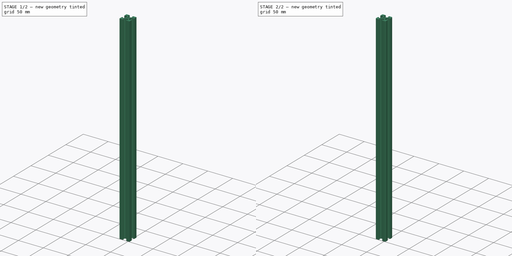
[diagram: build sequence overview — one tinted view per stage of 2, left to right]
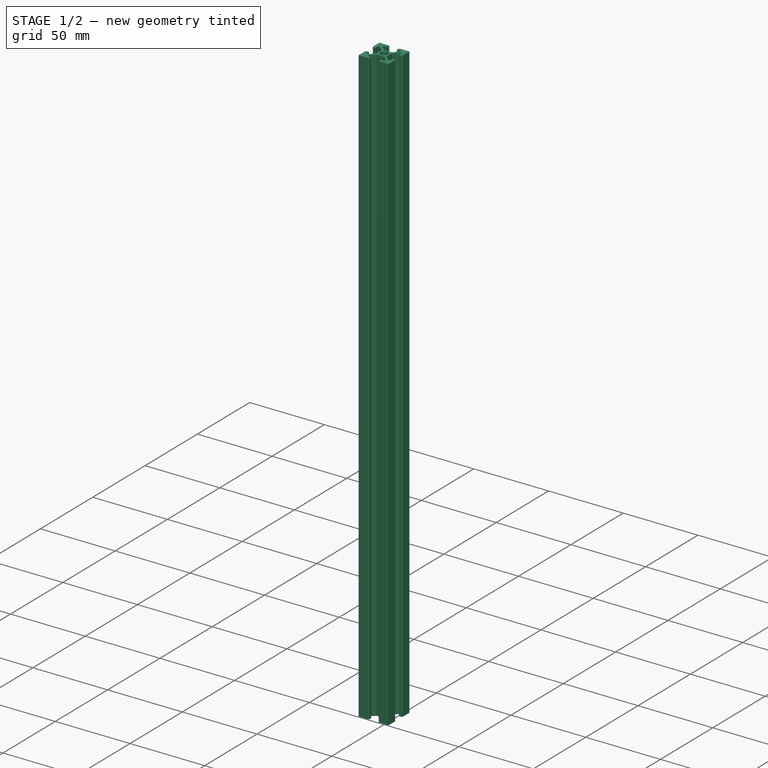
[diagram: stage 1 of 2 — iso view after this stage's code; geometry added in this stage tinted green]
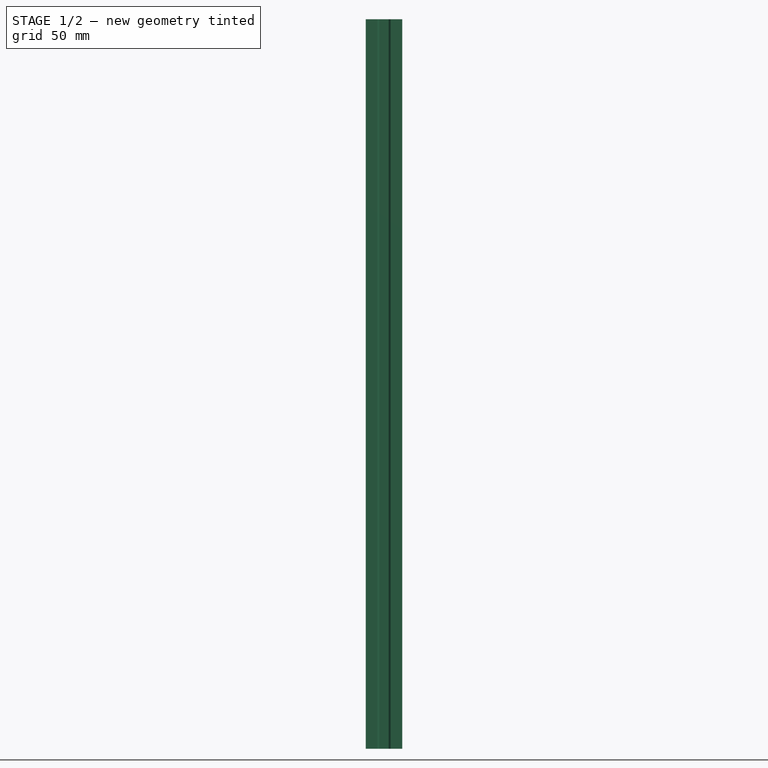
[diagram: stage 1 of 2 — front view after this stage's code; geometry added in this stage tinted green]
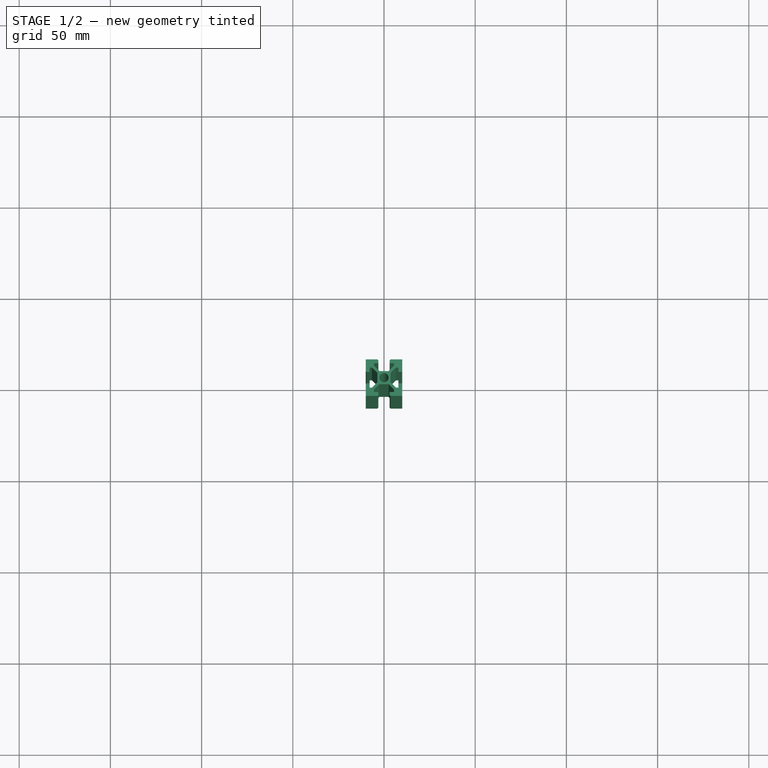
[diagram: stage 1 of 2 — top view after this stage's code; geometry added in this stage tinted green]
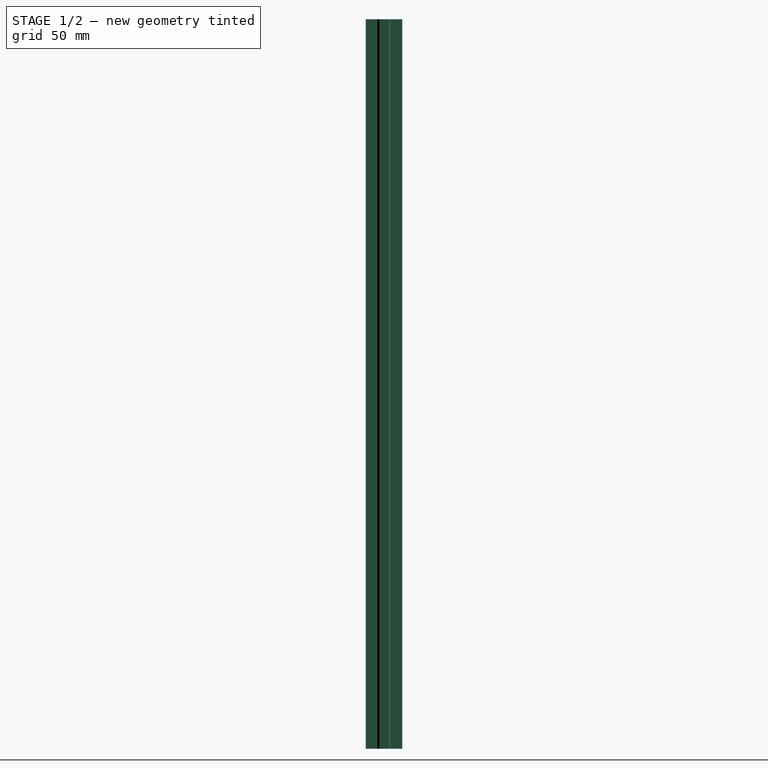
[diagram: stage 1 of 2 — right view after this stage's code; geometry added in this stage tinted green]
FCSTD DOCUMENT  (FreeCAD 1.0R39109 (Git))
Label: 5_6_2020_t_extrusion
License: All rights reserved
LicenseURL: https://en.wikipedia.org/wiki/All_rights_reserved
objects: Sketcher::SketchObject×1, App::FeaturePython×1, PartDesign::Pad×1, PartDesign::Fillet×1, PartDesign::Body×1
note: 9 computed .brp shape members not serialized (recipe doc carries the construction recipe); baked Part::Feature solids carry a one-line shape summary decoded from their .brp

FEATURE [Sketcher::SketchObject] Sketch
  ArcFitTolerance = 1e-06
  AttachmentSupport = -> [XY_Plane]
  FullyConstrained = true
  MakeInternals = false
  MapMode = 5
  sketch-geometry (69):
    g0: Circle CenterX=0 CenterY=0 CenterZ=0 NormalX=0 NormalY=0 NormalZ=1 AngleXU=0 Radius=2.5
    g1: LineSegment StartX=-3.6 StartY=2.53934 StartZ=0 EndX=-3.6 EndY=-2.53934 EndZ=0
    g2: LineSegment StartX=-2.53934 StartY=-3.6 StartZ=0 EndX=2.53934 EndY=-3.6 EndZ=0
    g3: LineSegment StartX=3.6 StartY=-2.53934 StartZ=0 EndX=3.6 EndY=2.53934 EndZ=0
    g4: LineSegment StartX=2.53934 StartY=3.6 StartZ=0 EndX=-2.53934 EndY=3.6 EndZ=0
    g5: LineSegment StartX=-2.53934 StartY=3.6 StartZ=0 EndX=-5.5 EndY=6.56066 EndZ=0
    g6: LineSegment StartX=-5.5 StartY=6.56066 StartZ=0 EndX=-5.5 EndY=7.9 EndZ=0
    g7: LineSegment StartX=-5.5 StartY=7.9 StartZ=0 EndX=-3.1 EndY=7.9 EndZ=0
    g8: LineSegment StartX=-3.1 StartY=7.9 StartZ=0 EndX=-3.1 EndY=9.5 EndZ=0
    g9: LineSegment StartX=-3.1 StartY=9.5 StartZ=0 EndX=-3.6 EndY=10 EndZ=0
    g10: LineSegment StartX=-3.6 StartY=10 StartZ=0 EndX=-10 EndY=10 EndZ=0
    g11: LineSegment [constr] StartX=-10 StartY=10 StartZ=0 EndX=-3.6 EndY=3.6 EndZ=0
    g12: LineSegment [constr] StartX=-3.6 StartY=3.6 StartZ=0 EndX=-2.53934 EndY=3.6 EndZ=0
    g13: LineSegment StartX=-3.6 StartY=2.53934 StartZ=0 EndX=-6.56066 EndY=5.5 EndZ=0
    g14: LineSegment StartX=-6.56066 StartY=5.5 StartZ=0 EndX=-7.9 EndY=5.5 EndZ=0
    g15: LineSegment StartX=-7.9 StartY=5.5 StartZ=0 EndX=-7.9 EndY=3.1 EndZ=0
    g16: LineSegment StartX=-7.9 StartY=3.1 StartZ=0 EndX=-9.5 EndY=3.1 EndZ=0
    g17: LineSegment StartX=-9.5 StartY=3.1 StartZ=0 EndX=-10 EndY=3.6 EndZ=0
    g18: LineSegment StartX=-10 StartY=3.6 StartZ=0 EndX=-10 EndY=10 EndZ=0
    g19: LineSegment StartX=-5.5 StartY=-6.56066 StartZ=0 EndX=-5.5 EndY=-7.9 EndZ=0
    g20: LineSegment StartX=-6.56066 StartY=-5.5 StartZ=0 EndX=-7.9 EndY=-5.5 EndZ=0
    g21: LineSegment StartX=-7.9 StartY=-5.5 StartZ=0 EndX=-7.9 EndY=-3.1 EndZ=0
    g22: LineSegment StartX=-7.9 StartY=-3.1 StartZ=0 EndX=-9.5 EndY=-3.1 EndZ=0
    g23: LineSegment StartX=-9.5 StartY=-3.1 StartZ=0 EndX=-10 EndY=-3.6 EndZ=0
    g24: LineSegment StartX=-10 StartY=-3.6 StartZ=0 EndX=-10 EndY=-10 EndZ=0
    g25: LineSegment StartX=-2.53934 StartY=-3.6 StartZ=0 EndX=-5.5 EndY=-6.56066 EndZ=0
    g26: LineSegment StartX=-5.5 StartY=-7.9 StartZ=0 EndX=-3.1 EndY=-7.9 EndZ=0
    g27: LineSegment StartX=-3.1 StartY=-7.9 StartZ=0 EndX=-3.1 EndY=-9.5 EndZ=0
    g28: LineSegment StartX=-3.1 StartY=-9.5 StartZ=0 EndX=-3.6 EndY=-10 EndZ=0
    g29: LineSegment StartX=-3.6 StartY=-10 StartZ=0 EndX=-10 EndY=-10 EndZ=0
    g30: LineSegment [constr] StartX=-10 StartY=-10 StartZ=0 EndX=-3.6 EndY=-3.6 EndZ=0
    g31: LineSegment StartX=-3.6 StartY=-2.53934 StartZ=0 EndX=-6.56066 EndY=-5.5 EndZ=0
    g32: LineSegment StartX=5.5 StartY=6.56066 StartZ=0 EndX=5.5 EndY=7.9 EndZ=0
    g33: LineSegment StartX=6.56066 StartY=5.5 StartZ=0 EndX=7.89999 EndY=5.5 EndZ=0
    g34: LineSegment StartX=7.89999 StartY=5.5 StartZ=0 EndX=7.9 EndY=3.1 EndZ=0
    g35: LineSegment StartX=7.9 StartY=3.1 StartZ=0 EndX=9.5 EndY=3.1 EndZ=0
    g36: LineSegment StartX=9.5 StartY=3.1 StartZ=0 EndX=10 EndY=3.6 EndZ=0
    g37: LineSegment StartX=10 StartY=3.6 StartZ=0 EndX=10 EndY=10 EndZ=0
    g38: LineSegment StartX=2.53934 StartY=3.6 StartZ=0 EndX=5.5 EndY=6.56066 EndZ=0
    g39: LineSegment StartX=5.5 StartY=7.9 StartZ=0 EndX=3.1 EndY=7.9 EndZ=0
    g40: LineSegment StartX=3.1 StartY=7.9 StartZ=0 EndX=3.1 EndY=9.5 EndZ=0
    g41: LineSegment StartX=3.1 StartY=9.5 StartZ=0 EndX=3.6 EndY=10 EndZ=0
    g42: LineSegment StartX=3.6 StartY=10 StartZ=0 EndX=10 EndY=10 EndZ=0
    g43: LineSegment [constr] StartX=10 StartY=10 StartZ=0 EndX=3.6 EndY=3.6 EndZ=0
    g44: LineSegment StartX=3.6 StartY=2.53934 StartZ=0 EndX=6.56066 EndY=5.5 EndZ=0
    g45: LineSegment StartX=5.5 StartY=-6.56066 StartZ=0 EndX=5.5 EndY=-7.9 EndZ=0
    g46: LineSegment StartX=6.56066 StartY=-5.5 StartZ=0 EndX=7.9 EndY=-5.5 EndZ=0
    g47: LineSegment StartX=7.9 StartY=-5.5 StartZ=0 EndX=7.9 EndY=-3.1 EndZ=0
    g48: LineSegment StartX=7.9 StartY=-3.1 StartZ=0 EndX=9.5 EndY=-3.1 EndZ=0
    g49: LineSegment StartX=9.5 StartY=-3.1 StartZ=0 EndX=10 EndY=-3.6 EndZ=0
    g50: LineSegment StartX=10 StartY=-3.6 StartZ=0 EndX=10 EndY=-10 EndZ=0
    g51: LineSegment StartX=2.53934 StartY=-3.6 StartZ=0 EndX=5.5 EndY=-6.56066 EndZ=0
    g52: LineSegment StartX=5.5 StartY=-7.9 StartZ=0 EndX=3.1 EndY=-7.9 EndZ=0
    g53: LineSegment StartX=3.6 StartY=-10 StartZ=0 EndX=10 EndY=-10 EndZ=0
    g54: LineSegment [constr] StartX=10 StartY=-10 StartZ=0 EndX=3.6 EndY=-3.6 EndZ=0
    g55: LineSegment StartX=3.6 StartY=-2.53934 StartZ=0 EndX=6.56066 EndY=-5.5 EndZ=0
    g56: LineSegment StartX=3.1 StartY=-7.9 StartZ=0 EndX=3.1 EndY=-9.5 EndZ=0
    g57: LineSegment StartX=3.1 StartY=-9.5 StartZ=0 EndX=3.6 EndY=-10 EndZ=0
    g58: LineSegment [constr] StartX=-3.6 StartY=-3.6 StartZ=0 EndX=-3.6 EndY=-2.53934 EndZ=0
    g59: LineSegment [constr] StartX=-3.6 StartY=-3.6 StartZ=0 EndX=-2.53934 EndY=-3.6 EndZ=0
    g60: LineSegment [constr] StartX=3.6 StartY=-3.6 StartZ=0 EndX=3.6 EndY=-2.53934 EndZ=0
    g61: LineSegment [constr] StartX=3.6 StartY=-3.6 StartZ=0 EndX=2.53934 EndY=-3.6 EndZ=0
    g62: LineSegment [constr] StartX=3.6 StartY=3.6 StartZ=0 EndX=2.53934 EndY=3.6 EndZ=0
    g63: LineSegment [constr] StartX=3.6 StartY=3.6 StartZ=0 EndX=3.6 EndY=2.53934 EndZ=0
    g64: LineSegment [constr] StartX=-3.6 StartY=3.6 StartZ=0 EndX=-3.6 EndY=2.53934 EndZ=0
    g65: LineSegment [constr] StartX=10 StartY=3.6 StartZ=0 EndX=10 EndY=-3.6 EndZ=0
    g66: LineSegment [constr] StartX=3.6 StartY=-10 StartZ=0 EndX=-3.6 EndY=-10 EndZ=0
    g67: LineSegment [constr] StartX=-10 StartY=-3.6 StartZ=0 EndX=-10 EndY=3.6 EndZ=0
    g68: LineSegment [constr] StartX=-3.6 StartY=10 StartZ=0 EndX=3.6 EndY=10 EndZ=0
  constraints (194):
    c: Coincident(g0,g-1)
    c: Diameter(g0) = 5
    c: Vertical(g1)
    c: Vertical(g3)
    c: Horizontal(g2)
    c: Horizontal(g4)
    c: DistanceY(g54,g43) = 7.2
    c: Vertical(g6)
    c: Horizontal(g7)
    c: Vertical(g8)
    c: Coincident(g11,g10)
    c: Parallel(g5,g11)
    c: Distance(g10,g-2) = 10
    c: Coincident(g6,g5)
    c: Coincident(g7,g6)
    c: Distance(g9,g-2) = 3.6
    c: Coincident(g9,g10)
    c: Coincident(g7,g8)
    c: Coincident(g8,g9)
    c: Distance(g5,g7) = 4.3
    c: Angle(g11,g1) = 2.35619
    c: Horizontal(g10)
    c: Distance(g-2,g6) = 5.5
    c: Angle(g9,g8) = 2.35619
    c: Coincident(g4,g5)
    c: Distance(g8,g-2) = 3.1
    c: PointOnObject(g11,g4)
    c: Coincident(g12,g11)
    c: Coincident(g12,g4)
    c: Distance(g11,g5) = 0.75
    c: Distance(g-1,g10) = 10
    c: Coincident(g14,g13)
    c: Coincident(g15,g14)
    c: Coincident(g17,g18)
    c: Coincident(g15,g16)
    c: Coincident(g16,g17)
    c: Distance(g13,g15) = 4.3
    c: Angle(g17,g16) = -2.35619
    c: Vertical(g19)
    c: Horizontal(g26)
    c: Vertical(g27)
    c: Coincident(g30,g29)
    c: Parallel(g25,g30)
    c: Coincident(g19,g25)
    c: Coincident(g26,g19)
    c: Coincident(g28,g29)
    c: Coincident(g26,g27)
    c: Coincident(g27,g28)
    c: Distance(g25,g26) = 4.3
    c: Horizontal(g29)
    c: Angle(g28,g27) = -2.35619
    c: Distance(g30,g25) = 0.75
    c: Coincident(g20,g31)
    c: Coincident(g21,g20)
    c: Coincident(g23,g24)
    c: Coincident(g21,g22)
    c: Coincident(g22,g23)
    c: Distance(g31,g21) = 4.3
    c: Angle(g23,g22) = 2.35619
    c: Vertical(g32)
    c: Horizontal(g39)
    c: Vertical(g40)
    c: Coincident(g43,g42)
    c: Parallel(g38,g43)
    c: Coincident(g32,g38)
    c: Coincident(g39,g32)
    c: Coincident(g41,g42)
    c: Coincident(g39,g40)
    c: Coincident(g40,g41)
    c: Distance(g38,g39) = 4.3
    c: Horizontal(g42)
    c: Angle(g41,g40) = -2.35619
    c: Distance(g43,g38) = 0.75
    c: Coincident(g33,g44)
    c: Coincident(g34,g33)
    c: Coincident(g36,g37)
    c: Coincident(g34,g35)
    c: Coincident(g35,g36)
    c: Distance(g44,g34) = 4.3
    c: Angle(g36,g35) = 2.35619
    c: Vertical(g45)
    c: Horizontal(g52)
    c: Vertical(g56)
    c: Coincident(g54,g53)
    c: Parallel(g51,g54)
    c: Coincident(g45,g51)
    c: Coincident(g52,g45)
    c: Coincident(g57,g53)
    c: Coincident(g52,g56)
    c: Coincident(g56,g57)
    c: Distance(g51,g52) = 4.3
    c: Horizontal(g53)
    c: Angle(g57,g56) = 2.35619
    c: Distance(g54,g51) = 0.75
    c: Coincident(g46,g55)
    c: Coincident(g47,g46)
    c: Coincident(g49,g50)
    c: Coincident(g47,g48)
    c: Coincident(g48,g49)
    c: Distance(g55,g47) = 4.3
    c: Angle(g49,g48) = -2.35619
    c: Coincident(g13,g1)
    c: Distance(g-1,g4) = 3.6
    c: Distance(g-2,g3) = 3.6
    c: Parallel(g15,g1)
    c: Parallel(g21,g1)
    c: Coincident(g18,g10)
    c: Vertical(g18)
    c: Horizontal(g16)
    c: Horizontal(g14)
    c: Coincident(g1,g31)
    c: Coincident(g2,g25)
    c: Coincident(g58,g30)
    c: Coincident(g58,g1)
    c: Vertical(g58)
    c: Coincident(g59,g30)
    c: Coincident(g59,g2)
    c: Horizontal(g59)
    c: Coincident(g3,g55)
    c: Coincident(g2,g51)
    c: Coincident(g60,g54)
    c: Coincident(g60,g3)
    c: Vertical(g60)
    c: Coincident(g61,g54)
    c: Coincident(g61,g2)
    c: Horizontal(g61)
    c: Coincident(g4,g38)
    c: Coincident(g3,g44)
    c: Coincident(g62,g43)
    c: Coincident(g62,g4)
    c: Horizontal(g62)
    c: Coincident(g63,g43)
    c: Coincident(g63,g3)
    c: Vertical(g63)
    c: Coincident(g64,g11)
    c: Coincident(g64,g1)
    c: Vertical(g64)
    c: Parallel(g13,g5)
    c: Parallel(g31,g25)
    c: Parallel(g51,g55)
    c: Parallel(g44,g38)
    c: Equal(g15,g7)
    c: Equal(g7,g39)
    c: Equal(g39,g34)
    c: Equal(g34,g47)
    c: Equal(g47,g52)
    c: Equal(g52,g26)
    c: Equal(g26,g21)
    c: Equal(g13,g5)
    c: Equal(g5,g38)
    c: Equal(g38,g44)
    c: Equal(g44,g55)
    c: Equal(g55,g51)
    c: Equal(g51,g25)
    c: Equal(g25,g31)
    c: Horizontal(g20)
    c: Horizontal(g46)
    c: Horizontal(g33)
    c: Equal(g9,g17)
    c: Equal(g9,g41)
    c: Equal(g41,g36)
    c: Equal(g36,g49)
    c: Equal(g49,g57)
    c: Equal(g57,g28)
    c: Equal(g28,g23)
    c: Equal(g18,g10)
    c: Equal(g10,g42)
    c: Equal(g42,g37)
    c: Equal(g37,g50)
    c: Equal(g50,g53)
    c: Equal(g53,g29)
    c: Equal(g29,g24)
    c: Equal(g1,g4)
    c: Equal(g4,g3)
    c: Equal(g3,g2)
    c: Coincident(g42,g37)
    c: Coincident(g29,g24)
    c: Coincident(g53,g50)
    c: Horizontal(g48)
    c: Horizontal(g22)
    c: Horizontal(g35)
    c: Coincident(g65,g36)
    c: Coincident(g65,g49)
    c: Vertical(g65)
    c: Coincident(g66,g53)
    c: Coincident(g66,g28)
    c: Horizontal(g66)
    c: Coincident(g67,g23)
    c: Coincident(g67,g17)
    c: Vertical(g67)
    c: Coincident(g68,g9)
    c: Coincident(g68,g41)
    c: Vertical(g37)
    c: Vertical(g47)
FEATURE [App::FeaturePython] dd  # WARN: FeaturePython — macro-defined, semantics opaque (R4)
  DynamicData = Created with DynamicData (v2.74) workbench. | This is a simple container object built | for holding custom properties.
  Length = 400
FEATURE [PartDesign::Pad] Pad
  Direction = (0,0,1)
  Length = 400
  Length2 = 10
  Profile = -> Sketch
  ReferenceAxis = -> Sketch [N_Axis]
  Refine = true
  Suppressed = false
  Type = 0
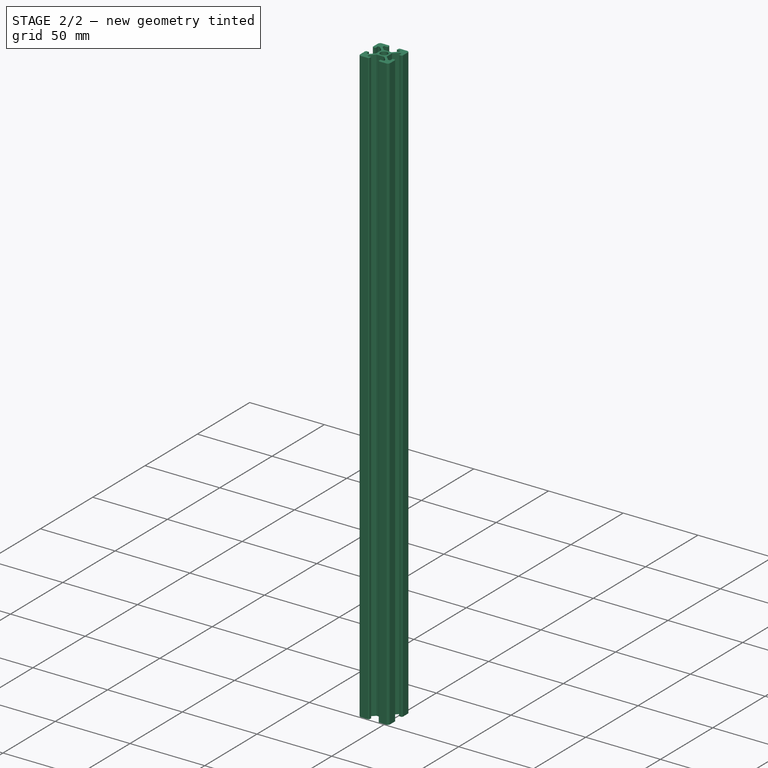
[diagram: stage 2 of 2 — iso view after this stage's code; geometry added in this stage tinted green]
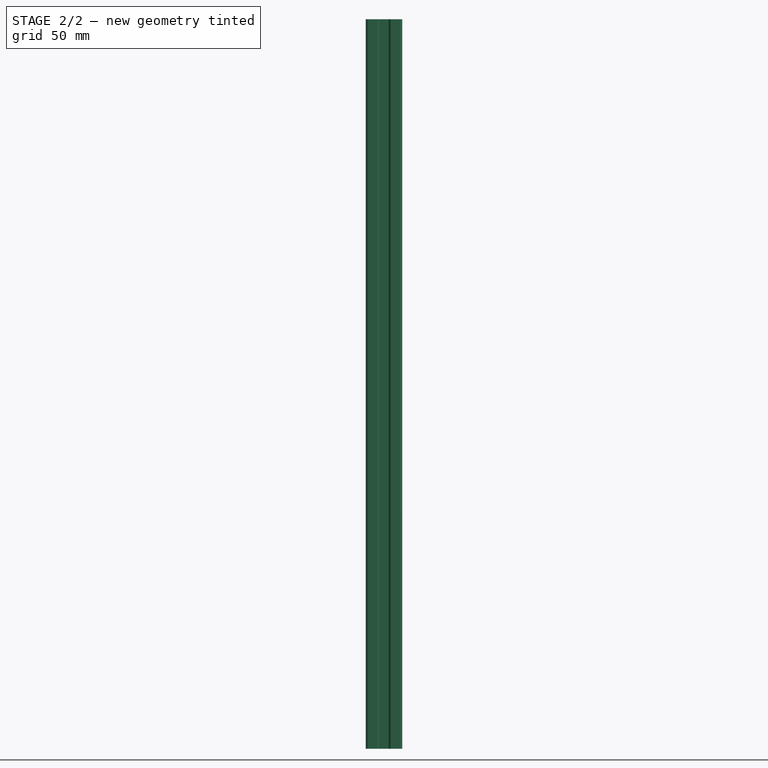
[diagram: stage 2 of 2 — front view after this stage's code; geometry added in this stage tinted green]
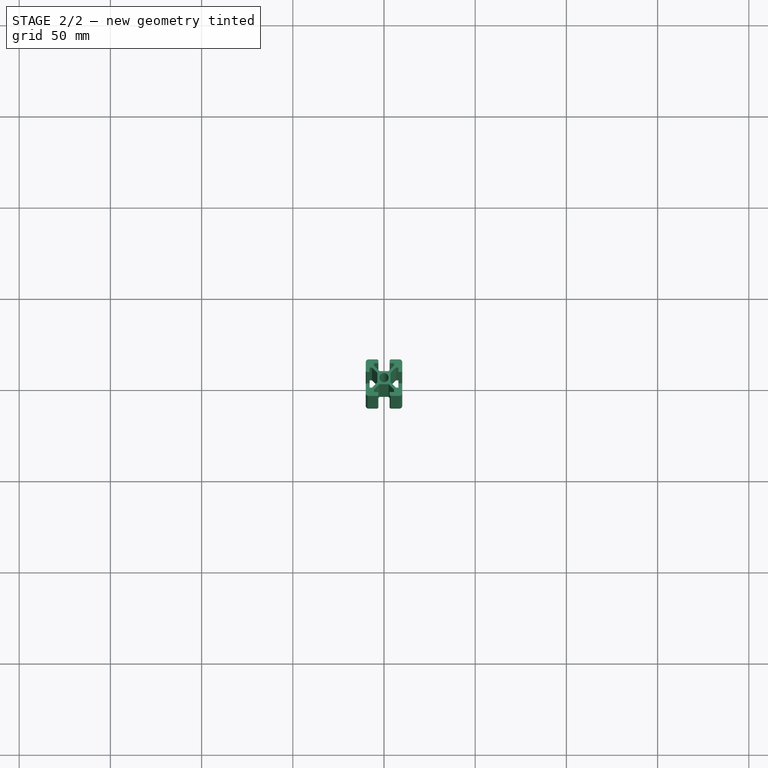
[diagram: stage 2 of 2 — top view after this stage's code; geometry added in this stage tinted green]
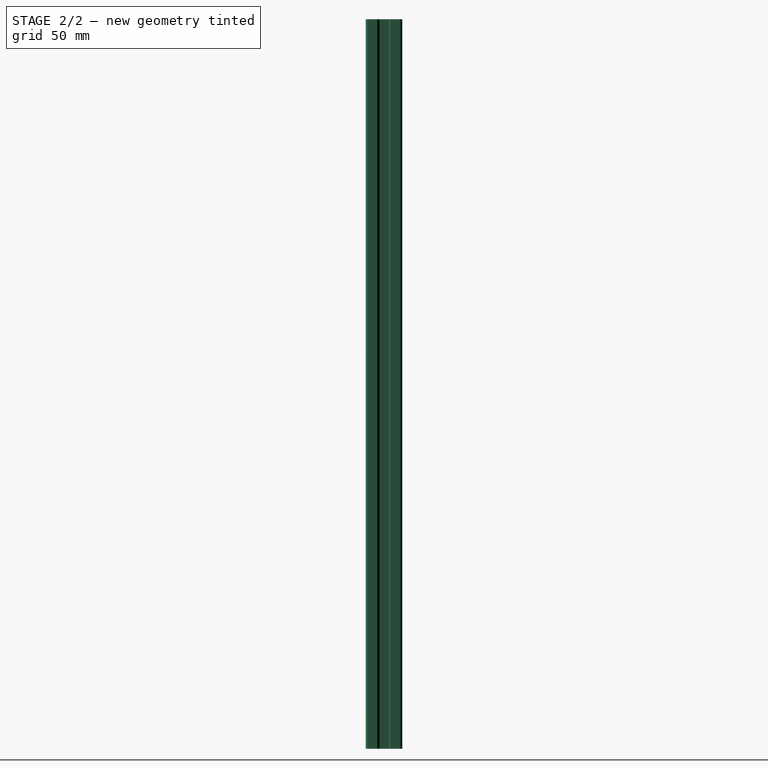
[diagram: stage 2 of 2 — right view after this stage's code; geometry added in this stage tinted green]
FEATURE [PartDesign::Fillet] Fillet
  Base = -> Pad [Edge23,Edge62,Edge101,Edge140]
  BaseFeature = -> Pad
  Radius = 1.5
  Refine = true
  SupportTransform = false
  Suppressed = false
  UseAllEdges = false
FEATURE [PartDesign::Body] Body
  AllowCompound = false
  Group = -> [Sketch,Pad,Fillet]
  Origin = -> Origin
  Tip = -> Fillet
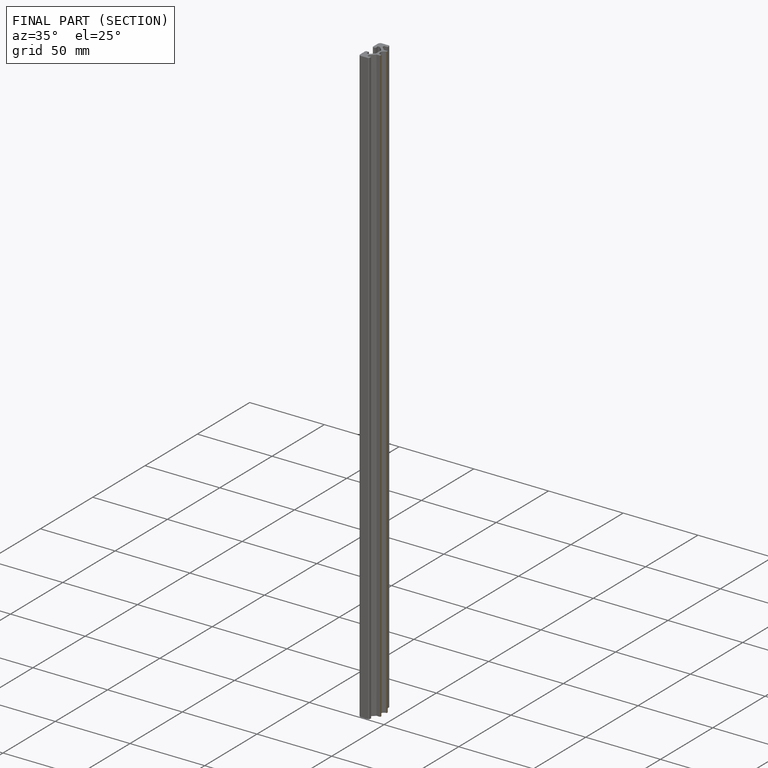
[diagram: finished part — half-section view (interior)]
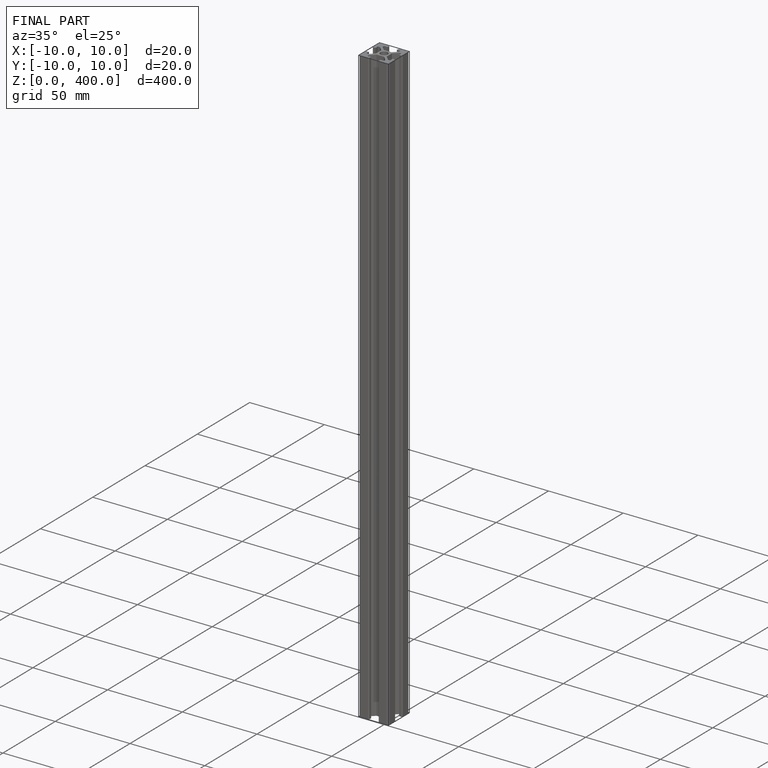
[diagram: finished part — iso view with bounding-box wireframe]
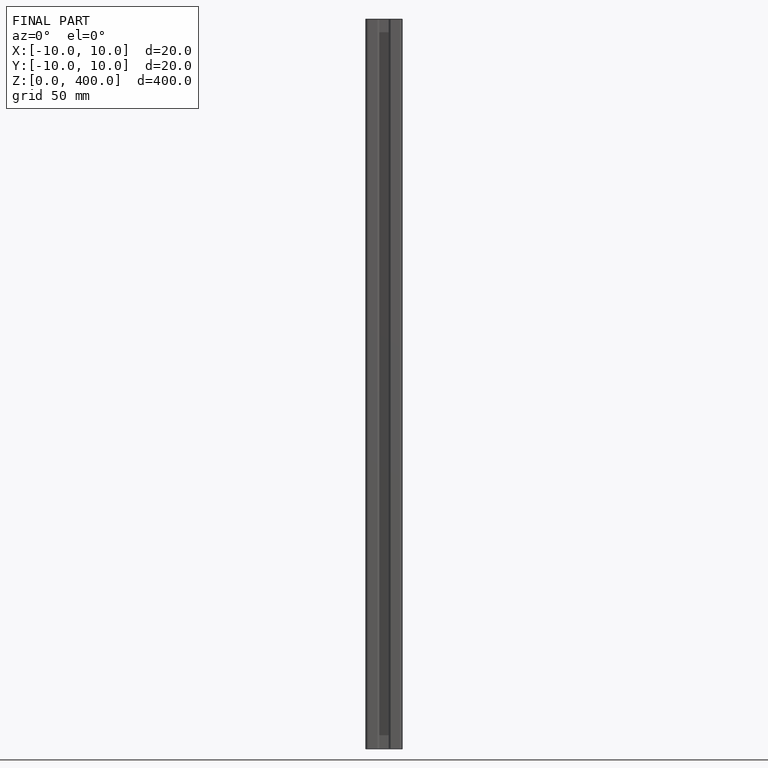
[diagram: finished part — front view with bounding-box wireframe]
